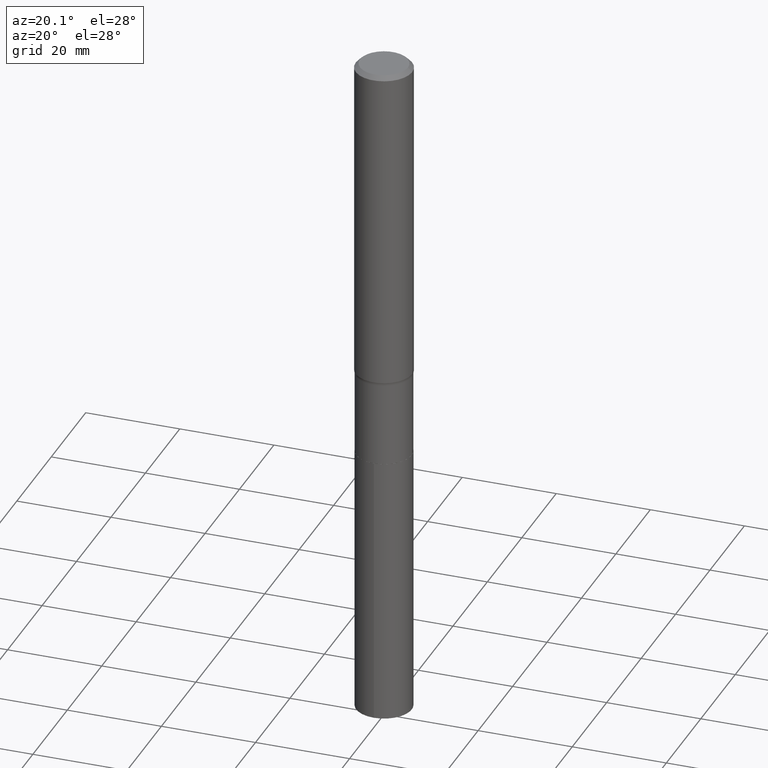
[diagram: clean part render]
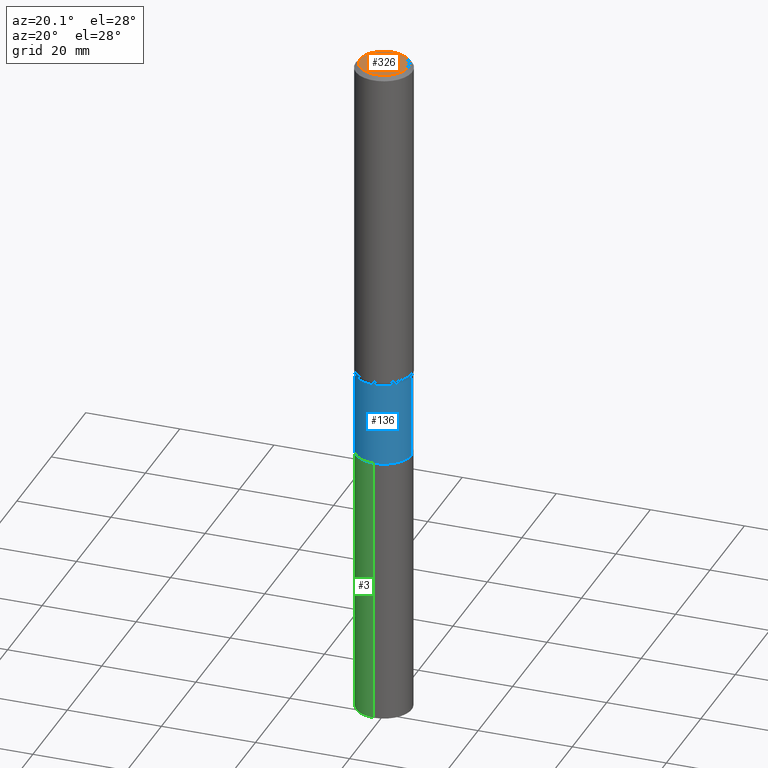
[diagram: same view with three faces highlighted in distinct colors, each labeled with its STEP entity id]
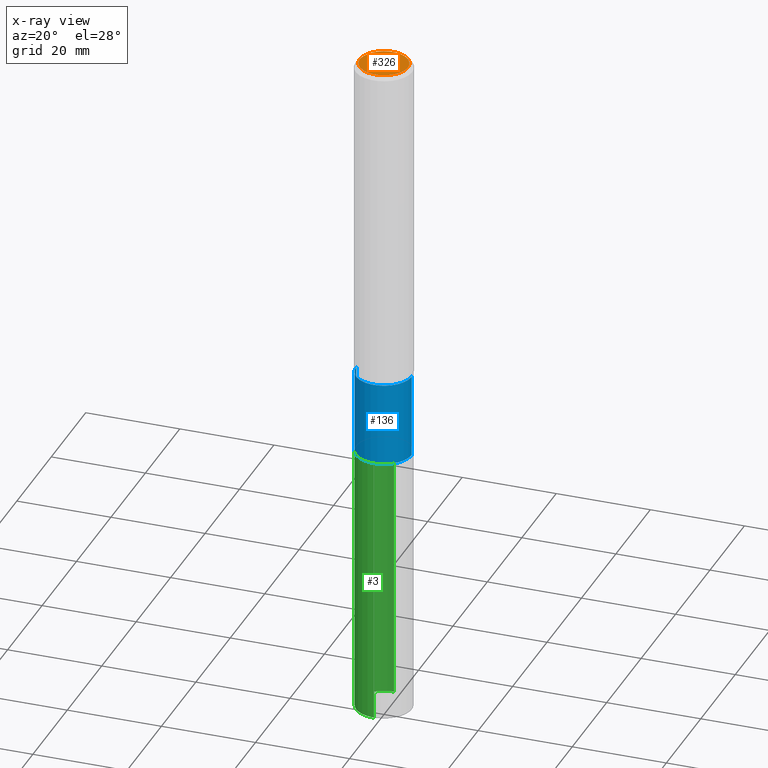
[diagram: x-ray of the same camera — body ghosted, the three highlighted faces saturated]
A machine part, auxiliary view with three faces highlighted in distinct colors.
The next image is the same camera in x-ray (body ghosted, the three faces saturated) — at least one of them is partly hidden behind the body in this view.
Their STEP definitions:

[orange] entity #326 — the highlighted planar face has unit normal (0, -0, -1).
#69 = PLANE ( 'NONE',  #455 ) ;
#70 = CARTESIAN_POINT ( 'NONE',  ( -0.2007700000000000040, 1.463821008716676943E-15, 4.096137381438094301E-18 ) ) ;
#86 = EDGE_LOOP ( 'NONE', ( #178, #447 ) ) ;
#127 = DIRECTION ( 'NONE',  ( 1.000000000000000000, -6.982962677686266711E-15, 4.876140833081945105E-29 ) ) ;
#139 = DIRECTION ( 'NONE',  ( 2.438088387897960049E-29, -3.491481338843145188E-15, -1.000000000000000000 ) ) ;
#144 = DIRECTION ( 'NONE',  ( -2.445468806185136597E-29, 3.491481338843145583E-15, 1.000000000000000000 ) ) ;
#155 = CARTESIAN_POINT ( 'NONE',  ( 0.2007700000000000040, -1.560767496960719869E-15, 4.096137381458473721E-18 ) ) ;
#160 = VERTEX_POINT ( 'NONE', #155 ) ;
#178 = ORIENTED_EDGE ( 'NONE', *, *, #423, .T. ) ;
#198 = CIRCLE ( 'NONE', #461, 0.2007700000000000040 ) ;
#222 = CIRCLE ( 'NONE', #240, 0.2007700000000000040 ) ;
#240 = AXIS2_PLACEMENT_3D ( 'NONE', #267, #445, #127 ) ;
#267 = CARTESIAN_POINT ( 'NONE',  ( -1.001697619218023151E-46, 1.430158722866391908E-32, 4.096137381448114529E-18 ) ) ;
#284 = DIRECTION ( 'NONE',  ( -1.000000000000000000, 6.982962677686265922E-15, -4.876176775795935793E-29 ) ) ;
#302 = FACE_OUTER_BOUND ( 'NONE', #86, .T. ) ;
#312 = EDGE_CURVE ( 'NONE', #160, #415, #222, .T. ) ;
#313 = CARTESIAN_POINT ( 'NONE',  ( -5.008488096090115757E-47, 7.150793614331959538E-33, 2.048068690724057264E-18 ) ) ;
#326 = ADVANCED_FACE ( 'NONE', ( #302 ), #69, .F. ) ;
#353 = CARTESIAN_POINT ( 'NONE',  ( -1.001697619218023151E-46, 1.430158722866391908E-32, 4.096137381448114529E-18 ) ) ;
#415 = VERTEX_POINT ( 'NONE', #70 ) ;
#420 = DIRECTION ( 'NONE',  ( 1.000000000000000000, -6.982962677686266711E-15, 4.876140833081945105E-29 ) ) ;
#423 = EDGE_CURVE ( 'NONE', #415, #160, #198, .T. ) ;
#445 = DIRECTION ( 'NONE',  ( -2.445468806185136597E-29, 3.491481338843145583E-15, 1.000000000000000000 ) ) ;
#447 = ORIENTED_EDGE ( 'NONE', *, *, #312, .T. ) ;
#455 = AXIS2_PLACEMENT_3D ( 'NONE', #313, #139, #284 ) ;
#461 = AXIS2_PLACEMENT_3D ( 'NONE', #353, #144, #420 ) ;

[blue] entity #136 — the highlighted cylindrical surface (edge-blend (fillet) strip) has radius 5.9004 mm, axis along (-0, 0, 1).
#5 = CIRCLE ( 'NONE', #441, 0.2323000000000000065 ) ;
#15 = DIRECTION ( 'NONE',  ( -2.445468806185136597E-29, 3.491481338843145583E-15, 1.000000000000000000 ) ) ;
#19 = CARTESIAN_POINT ( 'NONE',  ( 0.000000000000000000, 0.000000000000000000, 0.000000000000000000 ) ) ;
#57 = EDGE_CURVE ( 'NONE', #84, #87, #186, .T. ) ;
#58 = CARTESIAN_POINT ( 'NONE',  ( 8.422683662262848798E-29, -1.202536002724356323E-14, -3.444200000000000372 ) ) ;
#84 = VERTEX_POINT ( 'NONE', #338 ) ;
#87 = VERTEX_POINT ( 'NONE', #373 ) ;
#94 = FACE_OUTER_BOUND ( 'NONE', #291, .T. ) ;
#135 = DIRECTION ( 'NONE',  ( 1.000000000000000000, -6.982962677686266711E-15, 4.876176775795935232E-29 ) ) ;
#136 = ADVANCED_FACE ( 'NONE', ( #94 ), #303, .T. ) ;
#151 = VERTEX_POINT ( 'NONE', #242 ) ;
#161 = VECTOR ( 'NONE', #190, 39.37007874015748143 ) ;
#179 = AXIS2_PLACEMENT_3D ( 'NONE', #19, #449, #135 ) ;
#186 = LINE ( 'NONE', #464, #468 ) ;
#190 = DIRECTION ( 'NONE',  ( -2.445468806185136877E-29, 3.491481338843145188E-15, 1.000000000000000000 ) ) ;
#192 = VERTEX_POINT ( 'NONE', #209 ) ;
#202 = ORIENTED_EDGE ( 'NONE', *, *, #343, .F. ) ;
#209 = CARTESIAN_POINT ( 'NONE',  ( 0.2322999999999998955, -1.121324146782864033E-14, -2.746999999999999886 ) ) ;
#215 = DIRECTION ( 'NONE',  ( -2.445468806185136877E-29, 3.491481338843145188E-15, 1.000000000000000000 ) ) ;
#235 = ORIENTED_EDGE ( 'NONE', *, *, #278, .T. ) ;
#242 = CARTESIAN_POINT ( 'NONE',  ( 0.2323000000000000065, -1.364750225727008272E-14, -3.444200000000000372 ) ) ;
#246 = ORIENTED_EDGE ( 'NONE', *, *, #57, .F. ) ;
#269 = EDGE_CURVE ( 'NONE', #84, #151, #5, .T. ) ;
#278 = EDGE_CURVE ( 'NONE', #151, #192, #448, .T. ) ;
#282 = DIRECTION ( 'NONE',  ( -2.445468806185136597E-29, 3.491481338843145583E-15, 1.000000000000000000 ) ) ;
#285 = AXIS2_PLACEMENT_3D ( 'NONE', #311, #282, #380 ) ;
#288 = CIRCLE ( 'NONE', #285, 0.2322999999999998955 ) ;
#291 = EDGE_LOOP ( 'NONE', ( #246, #442, #235, #202 ) ) ;
#303 = CYLINDRICAL_SURFACE ( 'NONE', #179, 0.2322999999999999510 ) ;
#307 = DIRECTION ( 'NONE',  ( 1.000000000000000000, -6.982962677686265922E-15, 0.000000000000000000 ) ) ;
#311 = CARTESIAN_POINT ( 'NONE',  ( 6.717702810590569953E-29, -9.591099237802120838E-15, -2.746999999999999886 ) ) ;
#338 = CARTESIAN_POINT ( 'NONE',  ( -0.2323000000000000065, -9.157638857352128074E-15, -3.444200000000000372 ) ) ;
#343 = EDGE_CURVE ( 'NONE', #87, #192, #288, .T. ) ;
#373 = CARTESIAN_POINT ( 'NONE',  ( -0.2322999999999998955, -9.157638857352128074E-15, -2.746999999999999886 ) ) ;
#380 = DIRECTION ( 'NONE',  ( 1.000000000000000000, -6.982962677686269866E-15, 0.000000000000000000 ) ) ;
#414 = CARTESIAN_POINT ( 'NONE',  ( 0.2322999999999999510, -1.622142230026519492E-15, 1.132735865017395539E-29 ) ) ;
#441 = AXIS2_PLACEMENT_3D ( 'NONE', #58, #15, #307 ) ;
#442 = ORIENTED_EDGE ( 'NONE', *, *, #269, .T. ) ;
#448 = LINE ( 'NONE', #414, #161 ) ;
#449 = DIRECTION ( 'NONE',  ( -2.445468806185136597E-29, 3.491481338843145583E-15, 1.000000000000000000 ) ) ;
#464 = CARTESIAN_POINT ( 'NONE',  ( -0.2322999999999999510, 1.650590775170712383E-15, -1.142668621466214426E-29 ) ) ;
#468 = VECTOR ( 'NONE', #215, 39.37007874015748143 ) ;

[green] entity #3 — the highlighted cylindrical surface (edge-blend (fillet) strip) has radius 5.9004 mm, axis along (-0, 0, 1).
#1 = DIRECTION ( 'NONE',  ( -6.982962677686265922E-15, -1.000000000000000000, 2.351999994545211393E-15 ) ) ;
#3 = ADVANCED_FACE ( 'NONE', ( #224 ), #292, .T. ) ;
#6 = DIRECTION ( 'NONE',  ( -2.445459373819195632E-29, 3.491494846528029664E-15, 1.000000000000000000 ) ) ;
#13 = ORIENTED_EDGE ( 'NONE', *, *, #388, .T. ) ;
#32 = AXIS2_PLACEMENT_3D ( 'NONE', #325, #115, #1 ) ;
#36 = CARTESIAN_POINT ( 'NONE',  ( -1.622142230026380258E-15, -0.2323000000000199350, -5.708700000000000330 ) ) ;
#42 = AXIS2_PLACEMENT_3D ( 'NONE', #65, #453, #384 ) ;
#56 = VECTOR ( 'NONE', #375, 39.37007874015748143 ) ;
#59 = LINE ( 'NONE', #332, #212 ) ;
#65 = CARTESIAN_POINT ( 'NONE',  ( 1.396042641899260512E-28, -1.993185010045244784E-14, -5.708700000000001218 ) ) ;
#100 = DIRECTION ( 'NONE',  ( -2.445459373819195632E-29, 3.491494846528030059E-15, 1.000000000000000000 ) ) ;
#107 = CARTESIAN_POINT ( 'NONE',  ( 1.650590775170852603E-15, 0.2322999999999879883, -3.444700000000000983 ) ) ;
#115 = DIRECTION ( 'NONE',  ( -2.445459373819195632E-29, 3.491494846528030059E-15, 1.000000000000000000 ) ) ;
#137 = CARTESIAN_POINT ( 'NONE',  ( -1.622142230026435478E-15, -0.2323000000000120246, -3.444700000000000095 ) ) ;
#154 = EDGE_CURVE ( 'NONE', #229, #365, #59, .T. ) ;
#156 = CARTESIAN_POINT ( 'NONE',  ( 1.650590775170824402E-15, 0.2322999999999800502, -5.708700000000002106 ) ) ;
#157 = VERTEX_POINT ( 'NONE', #156 ) ;
#180 = CIRCLE ( 'NONE', #42, 0.2323000000000000065 ) ;
#212 = VECTOR ( 'NONE', #6, 39.37007874015748143 ) ;
#224 = FACE_OUTER_BOUND ( 'NONE', #450, .T. ) ;
#229 = VERTEX_POINT ( 'NONE', #36 ) ;
#243 = EDGE_CURVE ( 'NONE', #157, #401, #318, .T. ) ;
#264 = AXIS2_PLACEMENT_3D ( 'NONE', #286, #100, #425 ) ;
#286 = CARTESIAN_POINT ( 'NONE',  ( 8.423906396665941599E-29, -1.202710576791298553E-14, -3.444700000000000539 ) ) ;
#292 = CYLINDRICAL_SURFACE ( 'NONE', #32, 0.2323000000000000065 ) ;
#318 = LINE ( 'NONE', #345, #56 ) ;
#322 = ORIENTED_EDGE ( 'NONE', *, *, #427, .F. ) ;
#325 = CARTESIAN_POINT ( 'NONE',  ( 8.423906396665941599E-29, -1.202710576791298553E-14, -3.444700000000000539 ) ) ;
#330 = ORIENTED_EDGE ( 'NONE', *, *, #243, .F. ) ;
#332 = CARTESIAN_POINT ( 'NONE',  ( -1.622142230026435478E-15, -0.2323000000000120246, -3.444700000000000095 ) ) ;
#345 = CARTESIAN_POINT ( 'NONE',  ( 1.650590775170796792E-15, 0.2322999999999879883, -3.444700000000000983 ) ) ;
#365 = VERTEX_POINT ( 'NONE', #137 ) ;
#367 = ORIENTED_EDGE ( 'NONE', *, *, #154, .T. ) ;
#375 = DIRECTION ( 'NONE',  ( -2.445459373819195632E-29, 3.491494846528029664E-15, 1.000000000000000000 ) ) ;
#384 = DIRECTION ( 'NONE',  ( -6.982962677686265922E-15, -1.000000000000000000, 4.703999989090422785E-15 ) ) ;
#388 = EDGE_CURVE ( 'NONE', #157, #229, #180, .T. ) ;
#401 = VERTEX_POINT ( 'NONE', #107 ) ;
#407 = CIRCLE ( 'NONE', #264, 0.2323000000000000065 ) ;
#425 = DIRECTION ( 'NONE',  ( -6.982962677686265922E-15, -1.000000000000000000, 2.351999994545211393E-15 ) ) ;
#427 = EDGE_CURVE ( 'NONE', #401, #365, #407, .T. ) ;
#450 = EDGE_LOOP ( 'NONE', ( #330, #13, #367, #322 ) ) ;
#453 = DIRECTION ( 'NONE',  ( -2.445459373819195632E-29, 3.491494846528030059E-15, 1.000000000000000000 ) ) ;